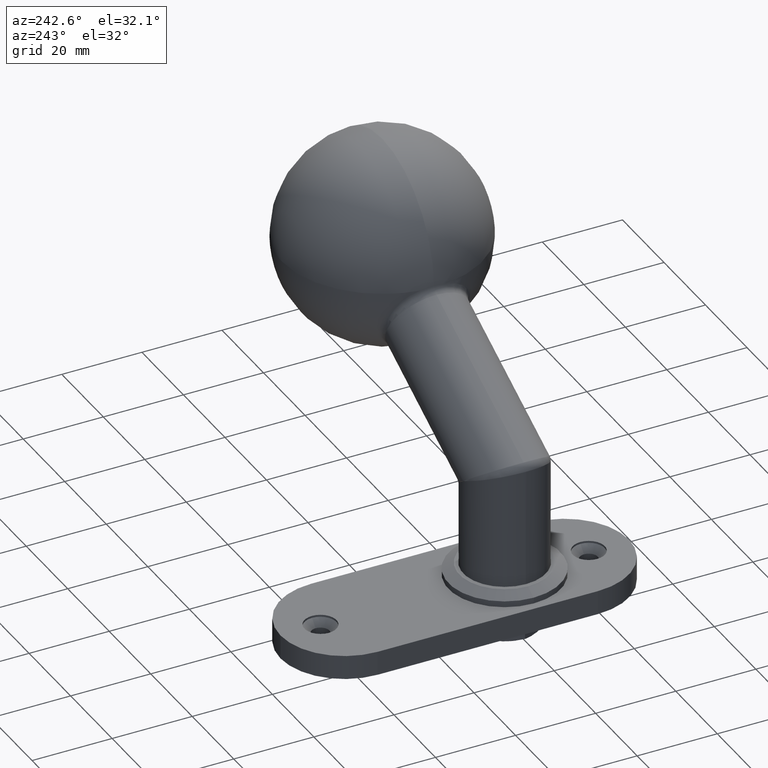
[diagram: clean part render]
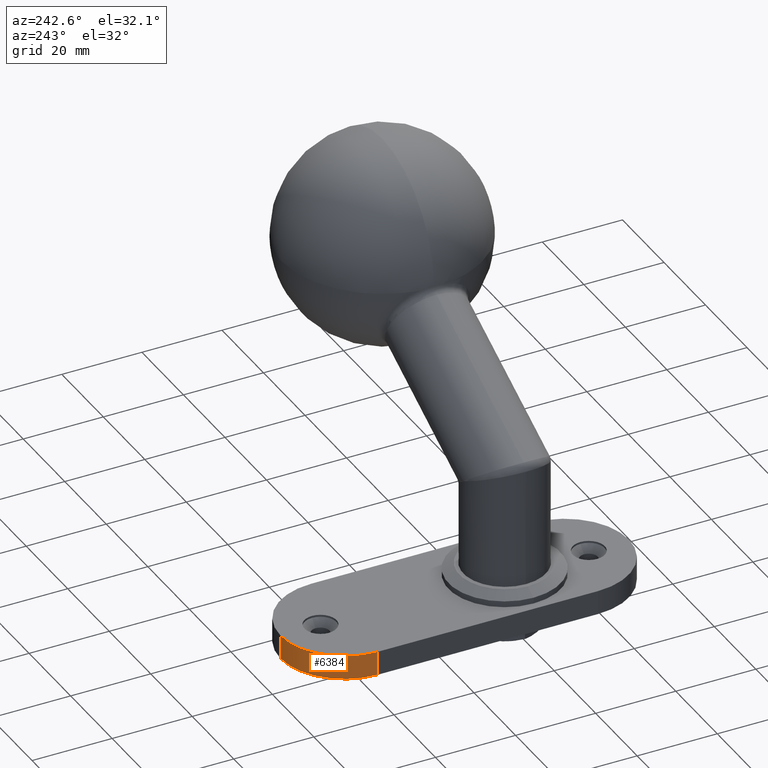
[diagram: same view with one face highlighted and labeled with its STEP entity id]
A machine part, auxiliary view. The second image highlights one B-rep face of the part: STEP entity #6384.
In plain terms, the highlighted cylindrical surface (partial cylindrical patch) has radius 16 mm, axis along (0, 0, -1).
Its self-contained STEP definition (entity closure, byte-faithful):
#160 = ORIENTED_EDGE ( 'NONE', *, *, #9631, .F. ) ;
#240 = DIRECTION ( 'NONE',  ( 0.000000000000000000, 0.000000000000000000, -1.000000000000000000 ) ) ;
#328 = CARTESIAN_POINT ( 'NONE',  ( -8.629137290756425438E-15, 62.00000000000000000, 6.000000000000000000 ) ) ;
#383 = LINE ( 'NONE', #6627, #4876 ) ;
#1557 = AXIS2_PLACEMENT_3D ( 'NONE', #9444, #4461, #1772 ) ;
#1585 = DIRECTION ( 'NONE',  ( -0.000000000000000000, 0.000000000000000000, 1.000000000000000000 ) ) ;
#1772 = DIRECTION ( 'NONE',  ( 1.000000000000000000, 0.000000000000000000, 0.000000000000000000 ) ) ;
#1786 = CIRCLE ( 'NONE', #7155, 16.00000000000000000 ) ;
#1916 = CARTESIAN_POINT ( 'NONE',  ( -16.00000000000000711, 62.00000000000000000, 0.000000000000000000 ) ) ;
#2092 = VECTOR ( 'NONE', #11151, 1000.000000000000000 ) ;
#2631 = CARTESIAN_POINT ( 'NONE',  ( -6.938893903907228378E-15, 78.00000000000000000, 6.000000000000000000 ) ) ;
#3757 = DIRECTION ( 'NONE',  ( 0.000000000000000000, 0.000000000000000000, -1.000000000000000000 ) ) ;
#3960 = EDGE_CURVE ( 'NONE', #5055, #8962, #12515, .T. ) ;
#4461 = DIRECTION ( 'NONE',  ( 0.000000000000000000, -0.000000000000000000, -1.000000000000000000 ) ) ;
#4554 = CARTESIAN_POINT ( 'NONE',  ( -16.00000000000000711, 62.00000000000000000, 6.000000000000000000 ) ) ;
#4876 = VECTOR ( 'NONE', #3757, 1000.000000000000000 ) ;
#5055 = VERTEX_POINT ( 'NONE', #4554 ) ;
#5896 = CARTESIAN_POINT ( 'NONE',  ( -16.00000000000000711, 62.00000000000000000, 6.000000000000000000 ) ) ;
#6384 = ADVANCED_FACE ( 'NONE', ( #14924 ), #16349, .T. ) ;
#6429 = ORIENTED_EDGE ( 'NONE', *, *, #3960, .F. ) ;
#6627 = CARTESIAN_POINT ( 'NONE',  ( -6.938893903907228378E-15, 78.00000000000000000, 6.000000000000000000 ) ) ;
#6862 = DIRECTION ( 'NONE',  ( 1.000000000000000000, 0.000000000000000000, 0.000000000000000000 ) ) ;
#7155 = AXIS2_PLACEMENT_3D ( 'NONE', #328, #1585, #6862 ) ;
#7484 = VERTEX_POINT ( 'NONE', #15647 ) ;
#7711 = AXIS2_PLACEMENT_3D ( 'NONE', #11935, #240, #10655 ) ;
#7980 = EDGE_CURVE ( 'NONE', #8962, #7484, #12673, .T. ) ;
#8310 = VERTEX_POINT ( 'NONE', #2631 ) ;
#8706 = EDGE_CURVE ( 'NONE', #8310, #7484, #383, .T. ) ;
#8962 = VERTEX_POINT ( 'NONE', #1916 ) ;
#9444 = CARTESIAN_POINT ( 'NONE',  ( -8.629137290756425438E-15, 62.00000000000000000, 0.000000000000000000 ) ) ;
#9631 = EDGE_CURVE ( 'NONE', #8310, #5055, #1786, .T. ) ;
#10655 = DIRECTION ( 'NONE',  ( -1.000000000000000000, 0.000000000000000000, 0.000000000000000000 ) ) ;
#11151 = DIRECTION ( 'NONE',  ( 0.000000000000000000, 0.000000000000000000, -1.000000000000000000 ) ) ;
#11570 = EDGE_LOOP ( 'NONE', ( #160, #12527, #14630, #6429 ) ) ;
#11935 = CARTESIAN_POINT ( 'NONE',  ( -8.629137290756425438E-15, 62.00000000000000000, 6.000000000000000000 ) ) ;
#12515 = LINE ( 'NONE', #5896, #2092 ) ;
#12527 = ORIENTED_EDGE ( 'NONE', *, *, #8706, .T. ) ;
#12673 = CIRCLE ( 'NONE', #1557, 16.00000000000000000 ) ;
#14630 = ORIENTED_EDGE ( 'NONE', *, *, #7980, .F. ) ;
#14924 = FACE_OUTER_BOUND ( 'NONE', #11570, .T. ) ;
#15647 = CARTESIAN_POINT ( 'NONE',  ( -6.938893903907228378E-15, 78.00000000000000000, 0.000000000000000000 ) ) ;
#16349 = CYLINDRICAL_SURFACE ( 'NONE', #7711, 16.00000000000000000 ) ;